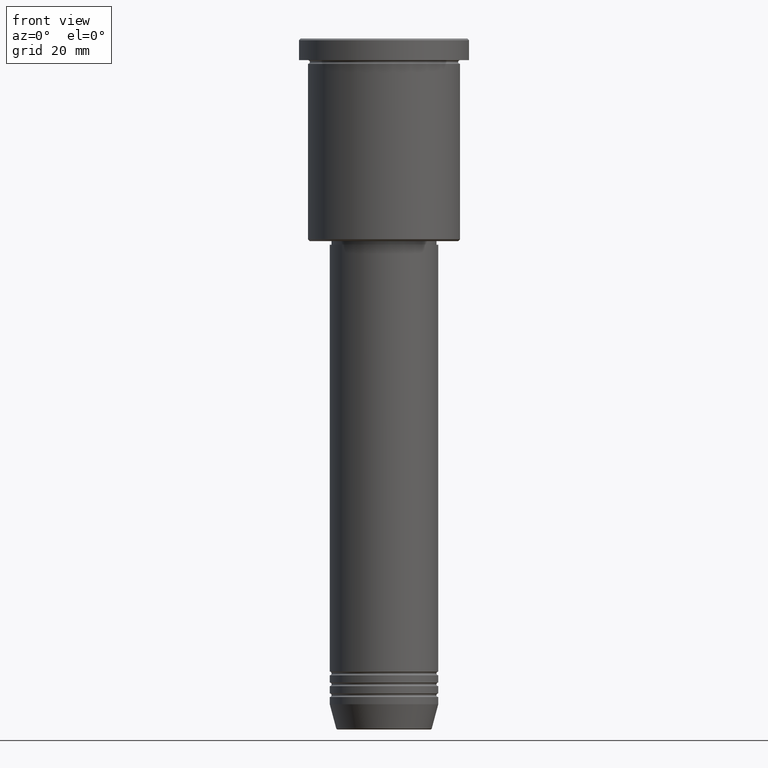
[diagram: clean part render]
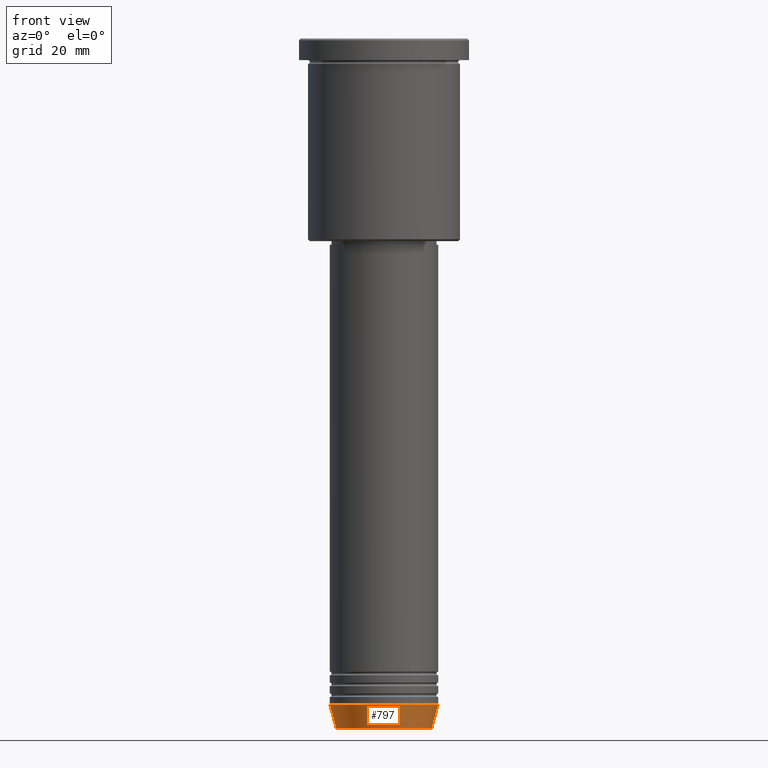
[diagram: same view with one face highlighted and labeled with its STEP entity id]
A machine part, front view. The second image highlights one B-rep face of the part: STEP entity #797.
In plain terms, the highlighted conical surface has half-angle 15 deg.
Its self-contained STEP definition (entity closure, byte-faithful):
#10 = DIRECTION ( 'NONE',  ( 1.000000000000000000, 0.000000000000000000, 0.000000000000000000 ) ) ;
#36 = CARTESIAN_POINT ( 'NONE',  ( 0.000000000000000000, 0.000000000000000000, -184.0000000000000284 ) ) ;
#73 = AXIS2_PLACEMENT_3D ( 'NONE', #231, #1053, #1059 ) ;
#112 = VERTEX_POINT ( 'NONE', #196 ) ;
#114 = DIRECTION ( 'NONE',  ( 1.000000000000000000, 0.000000000000000000, 0.000000000000000000 ) ) ;
#129 = VECTOR ( 'NONE', #1112, 1000.000000000000000 ) ;
#140 = VERTEX_POINT ( 'NONE', #279 ) ;
#153 = ORIENTED_EDGE ( 'NONE', *, *, #558, .T. ) ;
#155 = EDGE_CURVE ( 'NONE', #112, #533, #454, .T. ) ;
#183 = EDGE_CURVE ( 'NONE', #140, #626, #1097, .T. ) ;
#196 = CARTESIAN_POINT ( 'NONE',  ( 13.22365507213719305, 0.000000000000000000, -190.6294095225512422 ) ) ;
#231 = CARTESIAN_POINT ( 'NONE',  ( 0.000000000000000000, 0.000000000000000000, -184.0000000000000284 ) ) ;
#279 = CARTESIAN_POINT ( 'NONE',  ( -13.22365507213719305, 1.728200442216588583E-15, -190.6294095225512422 ) ) ;
#340 = AXIS2_PLACEMENT_3D ( 'NONE', #900, #1096, #10 ) ;
#354 = CARTESIAN_POINT ( 'NONE',  ( -15.00000000000000000, 1.836970198721029589E-15, -184.0000000000000284 ) ) ;
#454 = LINE ( 'NONE', #1183, #129 ) ;
#474 = EDGE_LOOP ( 'NONE', ( #513, #153, #733, #904 ) ) ;
#513 = ORIENTED_EDGE ( 'NONE', *, *, #183, .F. ) ;
#522 = CIRCLE ( 'NONE', #73, 15.00000000000000000 ) ;
#533 = VERTEX_POINT ( 'NONE', #730 ) ;
#558 = EDGE_CURVE ( 'NONE', #140, #112, #720, .T. ) ;
#606 = AXIS2_PLACEMENT_3D ( 'NONE', #36, #675, #114 ) ;
#626 = VERTEX_POINT ( 'NONE', #354 ) ;
#640 = CARTESIAN_POINT ( 'NONE',  ( -15.00000000000000000, 1.836970198721029589E-15, -184.0000000000000284 ) ) ;
#675 = DIRECTION ( 'NONE',  ( -0.000000000000000000, -0.000000000000000000, 1.000000000000000000 ) ) ;
#720 = CIRCLE ( 'NONE', #340, 13.22365507213719305 ) ;
#730 = CARTESIAN_POINT ( 'NONE',  ( 15.00000000000000000, 0.000000000000000000, -184.0000000000000284 ) ) ;
#731 = DIRECTION ( 'NONE',  ( -0.2588190451025213501, 3.169619151431772337E-17, 0.9659258262890680902 ) ) ;
#733 = ORIENTED_EDGE ( 'NONE', *, *, #155, .T. ) ;
#797 = ADVANCED_FACE ( 'NONE', ( #1010 ), #981, .T. ) ;
#900 = CARTESIAN_POINT ( 'NONE',  ( 0.000000000000000000, 0.000000000000000000, -190.6294095225512422 ) ) ;
#904 = ORIENTED_EDGE ( 'NONE', *, *, #917, .F. ) ;
#917 = EDGE_CURVE ( 'NONE', #626, #533, #522, .T. ) ;
#981 = CONICAL_SURFACE ( 'NONE', #606, 15.00000000000000000, 0.2617993877991500740 ) ;
#1010 = FACE_OUTER_BOUND ( 'NONE', #474, .T. ) ;
#1053 = DIRECTION ( 'NONE',  ( -0.000000000000000000, -0.000000000000000000, 1.000000000000000000 ) ) ;
#1059 = DIRECTION ( 'NONE',  ( 1.000000000000000000, 0.000000000000000000, 0.000000000000000000 ) ) ;
#1077 = VECTOR ( 'NONE', #731, 1000.000000000000000 ) ;
#1096 = DIRECTION ( 'NONE',  ( -0.000000000000000000, -0.000000000000000000, 1.000000000000000000 ) ) ;
#1097 = LINE ( 'NONE', #640, #1077 ) ;
#1112 = DIRECTION ( 'NONE',  ( 0.2588190451025213501, 0.000000000000000000, 0.9659258262890680902 ) ) ;
#1183 = CARTESIAN_POINT ( 'NONE',  ( 15.00000000000000000, 0.000000000000000000, -184.0000000000000284 ) ) ;